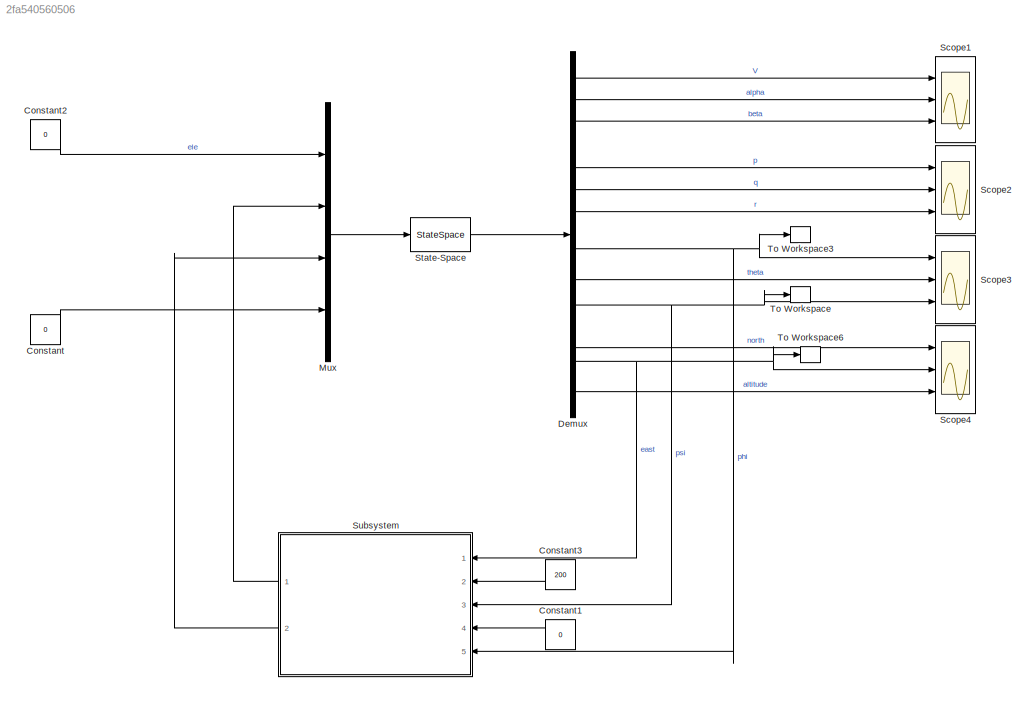
MODEL slx_2fa540560506
KIND model
CONFIG AbsTol = auto
CONFIG FixedStep = auto
CONFIG MaxStep = auto
CONFIG MinStep = auto
CONFIG RelTol = 1e-3
CONFIG SampleTimeConstraint = Unconstrained
CONFIG Solver = VariableStepAuto
CONFIG SolverMode = Auto
CONFIG SolverName = VariableStepAuto
CONFIG StartTime = 0.0
CONFIG StopTime = 100
BLOCK [Constant] Constant
  Value = 0
BLOCK [Constant] Constant1
  Value = 0
BLOCK [Constant] Constant2
  Value = 0
BLOCK [Constant] Constant3
  Value = 200
BLOCK [Demux] Demux
  DisplayOption = bar
  Outputs = 12
  Ports = [1, 12]
BLOCK [Mux] Mux
  DisplayOption = bar
  Ports = [4, 1]
BLOCK [Scope] Scope1
  NumInputPorts = 3
  Ports = [3]
  ScopeSpecificationString = Simulink.scopes.TimeScopeBlockCfg('CurrentConfiguration', extmgr.ConfigurationSet(extmgr.Configuration('Core','General UI',true),extmgr.Configuration('Core','Source UI',true),extmgr.Configuration('Sources','WiredSimulink',true,'DataLoggingVariableName','yy','DataLoggingSaveFormat','Array','DataLoggingDecimation','1','DataLoggingDecimateData',true),extmgr.Configuration('Visuals','Time Domain',true,...<+3055ch>
BLOCK [Scope] Scope2
  NumInputPorts = 3
  Ports = [3]
  ScopeSpecificationString = Simulink.scopes.TimeScopeBlockCfg('CurrentConfiguration', extmgr.ConfigurationSet(extmgr.Configuration('Core','General UI',true),extmgr.Configuration('Core','Source UI',true),extmgr.Configuration('Sources','WiredSimulink',true,'DataLoggingVariableName','ScopeData2','DataLoggingSaveFormat','StructureWithTime','DataLoggingDecimation','1','DataLoggingDecimateData',true),extmgr.Configuration('Visuals'...<+3074ch>
BLOCK [Scope] Scope3
  NumInputPorts = 3
  Ports = [3]
  ScopeSpecificationString = Simulink.scopes.TimeScopeBlockCfg('CurrentConfiguration', extmgr.ConfigurationSet(extmgr.Configuration('Core','General UI',true),extmgr.Configuration('Core','Source UI',true),extmgr.Configuration('Sources','WiredSimulink',true,'DataLoggingSaveFormat','StructureWithTime','DataLoggingDecimation','1','DataLoggingDecimateData',true),extmgr.Configuration('Visuals','Time Domain',true,'SerializedDisplays...<+3095ch>
BLOCK [Scope] Scope4
  NumInputPorts = 3
  Ports = [3]
  ScopeSpecificationString = Simulink.scopes.TimeScopeBlockCfg('CurrentConfiguration', extmgr.ConfigurationSet(extmgr.Configuration('Core','General UI',true),extmgr.Configuration('Core','Source UI',true),extmgr.Configuration('Sources','WiredSimulink',true,'DataLoggingVariableName','ScopeData1','DataLoggingSaveFormat','StructureWithTime','DataLoggingDecimation','1','DataLoggingDecimateData',true),extmgr.Configuration('Visuals'...<+3145ch>
BLOCK [StateSpace] State-Space
  A = A
  B = B
  C = C
  D = D
  Ports = [1, 1]
  X0 = [0 0 0 0 0 0 0 0 0 0 0 0]
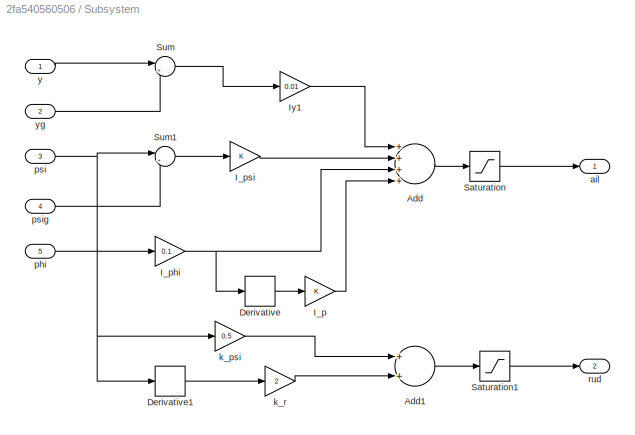
BLOCK [SubSystem] Subsystem
  Ports = [5, 2]
  RequestExecContextInheritance = off
  Variant = off
BLOCK [Sum] Subsystem/Add
  InputSameDT = off
  Inputs = ++++
  OutDataTypeStr = Inherit: Inherit via internal rule
  Ports = [4, 1]
  SaturateOnIntegerOverflow = off
BLOCK [Sum] Subsystem/Add1
  InputSameDT = off
  OutDataTypeStr = Inherit: Inherit via internal rule
  Ports = [2, 1]
  SaturateOnIntegerOverflow = off
BLOCK [Derivative] Subsystem/Derivative
BLOCK [Derivative] Subsystem/Derivative1
BLOCK [Gain] Subsystem/I_p
  OutDataTypeStr = Inherit: Inherit via internal rule
  ParamDataTypeStr = Inherit: Inherit via internal rule
  SaturateOnIntegerOverflow = off
BLOCK [Gain] Subsystem/I_phi
  Gain = 0.1
  OutDataTypeStr = Inherit: Inherit via internal rule
  ParamDataTypeStr = Inherit: Inherit via internal rule
  SaturateOnIntegerOverflow = off
BLOCK [Gain] Subsystem/I_psi
  OutDataTypeStr = Inherit: Inherit via internal rule
  ParamDataTypeStr = Inherit: Inherit via internal rule
  SaturateOnIntegerOverflow = off
BLOCK [Gain] Subsystem/Iy1
  Gain = 0.01
  OutDataTypeStr = Inherit: Inherit via internal rule
  ParamDataTypeStr = Inherit: Inherit via internal rule
  SaturateOnIntegerOverflow = off
BLOCK [Saturate] Subsystem/Saturation
  InputPortMap = u0
  LowerLimit = -12
  Ports = [1, 1]
  UpperLimit = 12
BLOCK [Saturate] Subsystem/Saturation1
  InputPortMap = u0
  LowerLimit = -8
  Ports = [1, 1]
  UpperLimit = 8
BLOCK [Sum] Subsystem/Sum
  IconShape = round
  InputSameDT = off
  Inputs = |+-
  OutDataTypeStr = Inherit: Inherit via internal rule
  Ports = [2, 1]
  SaturateOnIntegerOverflow = off
BLOCK [Sum] Subsystem/Sum1
  IconShape = round
  InputSameDT = off
  Inputs = |+-
  OutDataTypeStr = Inherit: Inherit via internal rule
  Ports = [2, 1]
  SaturateOnIntegerOverflow = off
BLOCK [Outport] Subsystem/ail
  IconDisplay = Port number
BLOCK [Gain] Subsystem/k_psi
  Gain = 0.5
  OutDataTypeStr = Inherit: Inherit via internal rule
  ParamDataTypeStr = Inherit: Inherit via internal rule
  SaturateOnIntegerOverflow = off
BLOCK [Gain] Subsystem/k_r
  Gain = 2
  OutDataTypeStr = Inherit: Inherit via internal rule
  ParamDataTypeStr = Inherit: Inherit via internal rule
  SaturateOnIntegerOverflow = off
BLOCK [Inport] Subsystem/phi
  IconDisplay = Port number
  Port = 5
BLOCK [Inport] Subsystem/psi
  IconDisplay = Port number
  Port = 3
BLOCK [Inport] Subsystem/psig
  IconDisplay = Port number
  Port = 4
BLOCK [Outport] Subsystem/rud
  IconDisplay = Port number
  Port = 2
BLOCK [Inport] Subsystem/y
  IconDisplay = Port number
BLOCK [Inport] Subsystem/yg
  IconDisplay = Port number
  Port = 2
BLOCK [ToWorkspace] To Workspace
  FixptAsFi = on
  MaxDataPoints = inf
  Ports = [1]
  SampleTime = -1
  Save2DSignal = 3-D array (concatenate along third dimension)
  SaveFormat = Timeseries
  VariableName = psi
BLOCK [ToWorkspace] To Workspace3
  FixptAsFi = on
  MaxDataPoints = inf
  Ports = [1]
  SampleTime = -1
  Save2DSignal = 3-D array (concatenate along third dimension)
  SaveFormat = Timeseries
  VariableName = phi
BLOCK [ToWorkspace] To Workspace6
  FixptAsFi = on
  MaxDataPoints = inf
  Ports = [1]
  SampleTime = -1
  Save2DSignal = 3-D array (concatenate along third dimension)
  SaveFormat = Timeseries
  VariableName = y
LINE Constant1:1 -> Subsystem:4
LINE Constant2:1 -> Mux:1
LINE Constant3:1 -> Subsystem:2
LINE Constant:1 -> Mux:4
LINE Demux:1 -> Scope1:1
LINE Demux:10 -> Scope4:1
NET Demux:11 -> Scope4:2, Subsystem:1, To Workspace6:1
LINE Demux:12 -> Scope4:3
LINE Demux:2 -> Scope1:2
LINE Demux:3 -> Scope1:3
LINE Demux:4 -> Scope2:1
LINE Demux:5 -> Scope2:2
LINE Demux:6 -> Scope2:3
NET Demux:7 -> Scope3:1, Subsystem:5, To Workspace3:1
LINE Demux:8 -> Scope3:2
NET Demux:9 -> Scope3:3, Subsystem:3, To Workspace:1
LINE Mux:1 -> State-Space:1
LINE State-Space:1 -> Demux:1
LINE Subsystem/Add1:1 -> Subsystem/Saturation1:1
LINE Subsystem/Add:1 -> Subsystem/Saturation:1
LINE Subsystem/Derivative1:1 -> Subsystem/k_r:1
LINE Subsystem/Derivative:1 -> Subsystem/I_p:1
LINE Subsystem/I_p:1 -> Subsystem/Add:4
NET Subsystem/I_phi:1 -> Subsystem/Add:3, Subsystem/Derivative:1
LINE Subsystem/I_psi:1 -> Subsystem/Add:2
LINE Subsystem/Iy1:1 -> Subsystem/Add:1
LINE Subsystem/Saturation1:1 -> Subsystem/rud:1
LINE Subsystem/Saturation:1 -> Subsystem/ail:1
LINE Subsystem/Sum1:1 -> Subsystem/I_psi:1
LINE Subsystem/Sum:1 -> Subsystem/Iy1:1
LINE Subsystem/k_psi:1 -> Subsystem/Add1:1
LINE Subsystem/k_r:1 -> Subsystem/Add1:2
LINE Subsystem/phi:1 -> Subsystem/I_phi:1
NET Subsystem/psi:1 -> Subsystem/Derivative1:1, Subsystem/Sum1:1, Subsystem/k_psi:1
LINE Subsystem/psig:1 -> Subsystem/Sum1:2
LINE Subsystem/y:1 -> Subsystem/Sum:1
LINE Subsystem/yg:1 -> Subsystem/Sum:2
LINE Subsystem:1 -> Mux:2
LINE Subsystem:2 -> Mux:3
note: NET lines group one-source signal fan-out (src -> all destinations, sorted); 1:1 wires keep LINE
